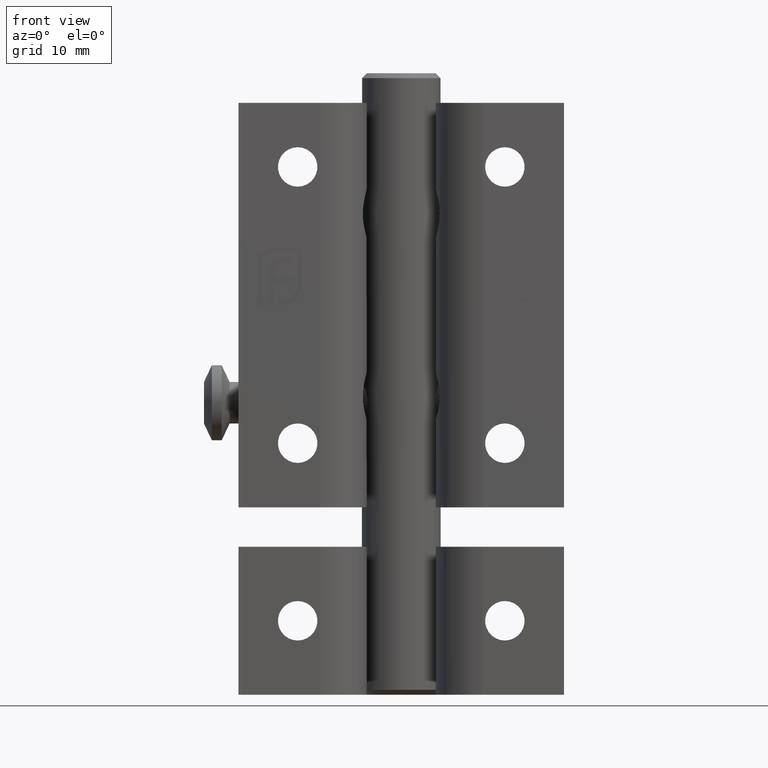
[diagram: clean part render]
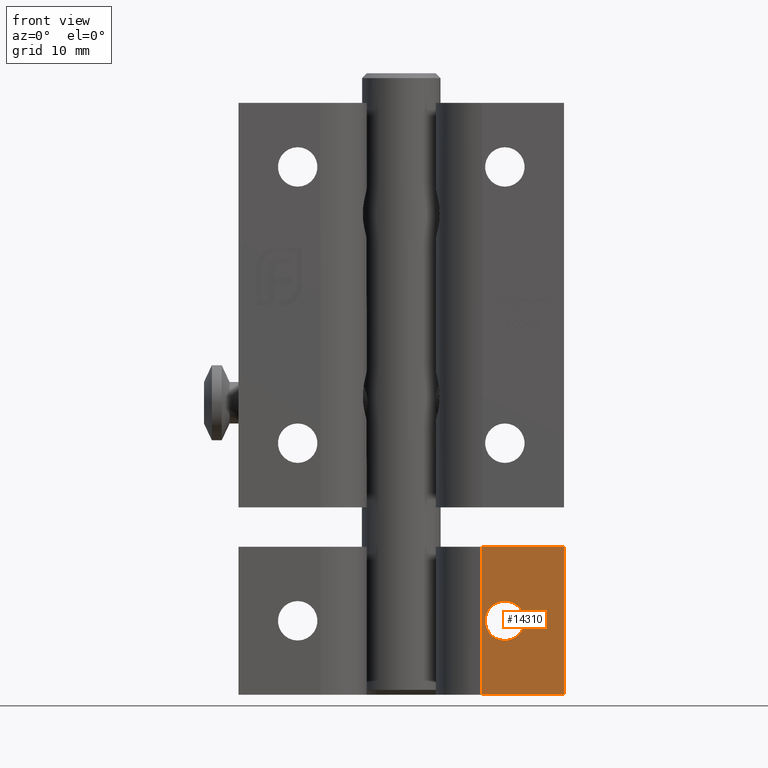
[diagram: same view with one face highlighted and labeled with its STEP entity id]
A machine part, front view. The second image highlights one B-rep face of the part: STEP entity #14310.
In plain terms, the highlighted planar face has unit normal (0, 1, 0).
Its self-contained STEP definition (entity closure, byte-faithful):
#120 = FACE_BOUND ( 'NONE', #1804, .T. ) ;
#1804 = EDGE_LOOP ( 'NONE', ( #6940 ) ) ;
#2168 = EDGE_CURVE ( 'NONE', #6922, #5254, #3791, .T. ) ;
#2907 = VECTOR ( 'NONE', #11426, 1000.000000000000000 ) ;
#3285 = LINE ( 'NONE', #9884, #12405 ) ;
#3288 = EDGE_CURVE ( 'NONE', #5254, #8759, #14918, .T. ) ;
#3311 = CARTESIAN_POINT ( 'NONE',  ( 8.192006389780432940, 0.000000000000000000, 7.500000000000000000 ) ) ;
#3482 = EDGE_CURVE ( 'NONE', #5473, #8759, #3285, .T. ) ;
#3647 = EDGE_CURVE ( 'NONE', #6922, #5473, #9490, .T. ) ;
#3791 = LINE ( 'NONE', #4450, #2907 ) ;
#3893 = AXIS2_PLACEMENT_3D ( 'NONE', #7524, #12036, #12138 ) ;
#3994 = DIRECTION ( 'NONE',  ( -0.000000000000000000, -0.000000000000000000, -1.000000000000000000 ) ) ;
#4447 = CARTESIAN_POINT ( 'NONE',  ( 8.192006389780432940, 0.000000000000000000, 7.500000000000000000 ) ) ;
#4450 = CARTESIAN_POINT ( 'NONE',  ( 8.192006389780432940, 0.000000000000000000, 7.500000000000000000 ) ) ;
#4704 = ORIENTED_EDGE ( 'NONE', *, *, #3288, .T. ) ;
#5254 = VERTEX_POINT ( 'NONE', #10458 ) ;
#5461 = EDGE_LOOP ( 'NONE', ( #4704, #5878, #14809, #10916 ) ) ;
#5473 = VERTEX_POINT ( 'NONE', #9127 ) ;
#5697 = CARTESIAN_POINT ( 'NONE',  ( 8.192006389780432940, 0.000000000000000000, -7.500000000000000000 ) ) ;
#5746 = AXIS2_PLACEMENT_3D ( 'NONE', #3311, #6777, #13795 ) ;
#5878 = ORIENTED_EDGE ( 'NONE', *, *, #3482, .F. ) ;
#5890 = CARTESIAN_POINT ( 'NONE',  ( 8.192006389780432940, 0.000000000000000000, 7.500000000000000000 ) ) ;
#6777 = DIRECTION ( 'NONE',  ( 0.000000000000000000, 1.000000000000000000, 0.000000000000000000 ) ) ;
#6922 = VERTEX_POINT ( 'NONE', #5890 ) ;
#6924 = VECTOR ( 'NONE', #9195, 1000.000000000000000 ) ;
#6940 = ORIENTED_EDGE ( 'NONE', *, *, #8728, .T. ) ;
#7524 = CARTESIAN_POINT ( 'NONE',  ( 10.50000000000000000, 0.000000000000000000, -3.857637417314162689E-15 ) ) ;
#8485 = FACE_OUTER_BOUND ( 'NONE', #5461, .T. ) ;
#8728 = EDGE_CURVE ( 'NONE', #12654, #12654, #11599, .T. ) ;
#8759 = VERTEX_POINT ( 'NONE', #14381 ) ;
#9127 = CARTESIAN_POINT ( 'NONE',  ( 16.50000000000000000, 0.000000000000000000, 7.500000000000000000 ) ) ;
#9195 = DIRECTION ( 'NONE',  ( 1.000000000000000000, 0.000000000000000000, 0.000000000000000000 ) ) ;
#9324 = DIRECTION ( 'NONE',  ( 1.000000000000000000, 0.000000000000000000, 0.000000000000000000 ) ) ;
#9490 = LINE ( 'NONE', #4447, #6924 ) ;
#9884 = CARTESIAN_POINT ( 'NONE',  ( 16.50000000000000000, 0.000000000000000000, 7.500000000000000000 ) ) ;
#10458 = CARTESIAN_POINT ( 'NONE',  ( 8.192006389780432940, 0.000000000000000000, -7.500000000000000000 ) ) ;
#10742 = VECTOR ( 'NONE', #9324, 1000.000000000000000 ) ;
#10912 = CARTESIAN_POINT ( 'NONE',  ( 10.50000000000000000, 0.000000000000000000, 1.999999999999995781 ) ) ;
#10916 = ORIENTED_EDGE ( 'NONE', *, *, #2168, .T. ) ;
#11215 = PLANE ( 'NONE',  #5746 ) ;
#11426 = DIRECTION ( 'NONE',  ( -0.000000000000000000, -0.000000000000000000, -1.000000000000000000 ) ) ;
#11599 = CIRCLE ( 'NONE', #3893, 1.999999999999999556 ) ;
#12036 = DIRECTION ( 'NONE',  ( 0.000000000000000000, 1.000000000000000000, 0.000000000000000000 ) ) ;
#12138 = DIRECTION ( 'NONE',  ( 0.000000000000000000, 0.000000000000000000, 1.000000000000000000 ) ) ;
#12405 = VECTOR ( 'NONE', #3994, 1000.000000000000000 ) ;
#12654 = VERTEX_POINT ( 'NONE', #10912 ) ;
#13795 = DIRECTION ( 'NONE',  ( 0.000000000000000000, -0.000000000000000000, 1.000000000000000000 ) ) ;
#14310 = ADVANCED_FACE ( 'NONE', ( #120, #8485 ), #11215, .F. ) ;
#14381 = CARTESIAN_POINT ( 'NONE',  ( 16.50000000000000000, 0.000000000000000000, -7.500000000000000000 ) ) ;
#14809 = ORIENTED_EDGE ( 'NONE', *, *, #3647, .F. ) ;
#14918 = LINE ( 'NONE', #5697, #10742 ) ;